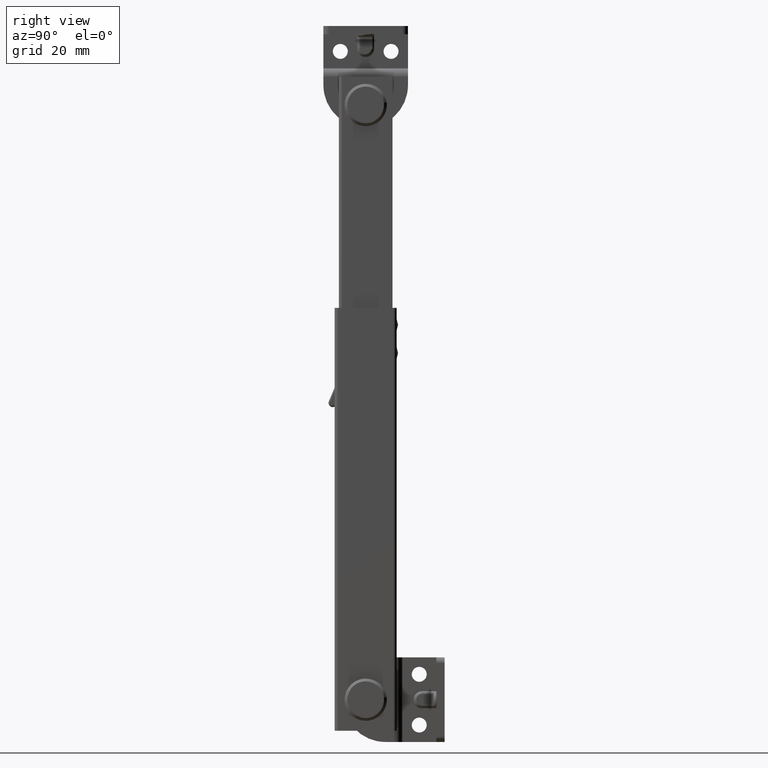
[diagram: clean part render]
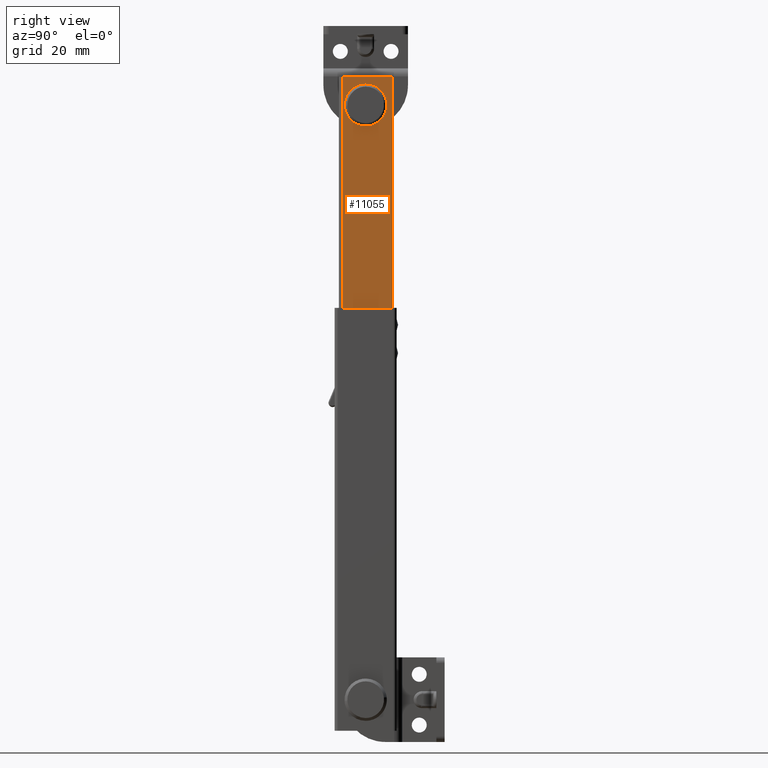
[diagram: same view with one face highlighted and labeled with its STEP entity id]
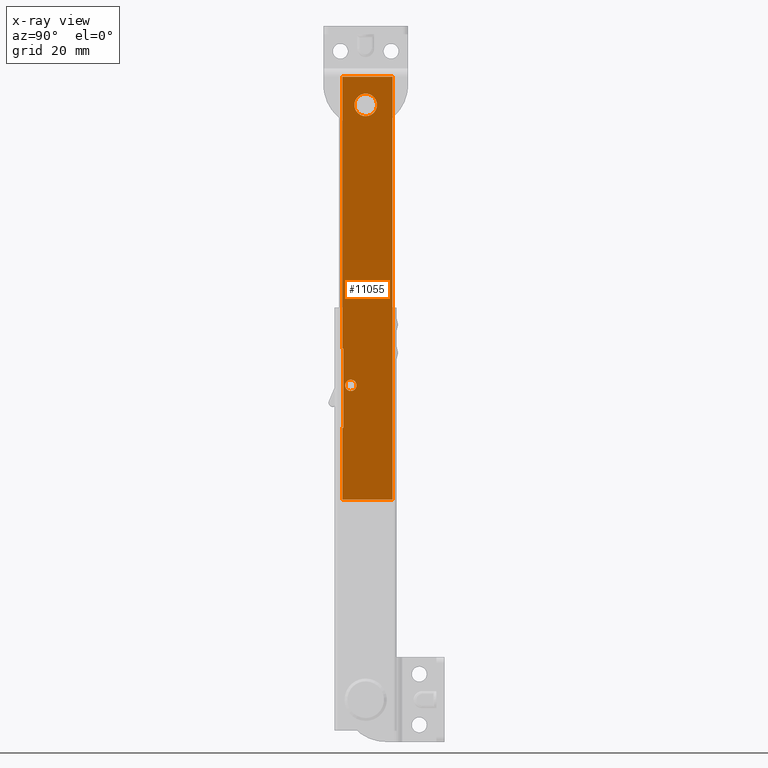
[diagram: x-ray of the same camera — body ghosted, the highlighted face saturated]
A machine part, right view. The second image highlights one B-rep face of the part: STEP entity #11055.
The next image is the same camera in x-ray: the body ghosted, the highlighted face saturated — about 0% of this face is hidden behind the body in this view.
In plain terms, the highlighted face is a freeform B-spline surface patch.
Its self-contained STEP definition (entity closure, byte-faithful):
#9904=CARTESIAN_POINT('',(-1.499999999999946,3.987669334732066,210.686163614541900));
#9905=VERTEX_POINT('',#9904);
#9911=CARTESIAN_POINT('',(-1.499999999999946,-1.421085E-014,215.0));
#9912=VERTEX_POINT('',#9911);
#9913=CARTESIAN_POINT('',(-1.499999999999946,3.987669334732067,210.686163614541870));
#9914=CARTESIAN_POINT('',(-1.499999999999946,3.999999999999987,210.842839569410760));
#9915=CARTESIAN_POINT('',(-1.499999999999946,3.999999999999986,211.0));
#9916=CARTESIAN_POINT('',(-1.499999999999946,3.999999999999987,214.999999999999940));
#9917=CARTESIAN_POINT('',(-1.499999999999946,-1.421085E-014,215.0));
#9925=(BOUNDED_CURVE()B_SPLINE_CURVE(2,(#9913,#9914,#9915,#9916,#9917),.UNSPECIFIED.,.F.,.U.)B_SPLINE_CURVE_WITH_KNOTS((3,2,3),(0.736331300413807,0.750000000000000,1.0),.UNSPECIFIED.)CURVE()GEOMETRIC_REPRESENTATION_ITEM()RATIONAL_B_SPLINE_CURVE((0.969723355714863,0.983986122324824,1.0,0.707106781186548,1.0))REPRESENTATION_ITEM(''));
#9926=EDGE_CURVE('',#9905,#9912,#9925,.T.);
#9928=CARTESIAN_POINT('',(-1.499999999999946,-3.987669334732095,211.313836385458100));
#9929=VERTEX_POINT('',#9928);
#9930=CARTESIAN_POINT('',(-1.499999999999946,-1.421085E-014,215.0));
#9931=CARTESIAN_POINT('',(-1.499999999999946,-3.697561961895362,214.999999999999910));
#9932=CARTESIAN_POINT('',(-1.499999999999946,-3.987669334732094,211.313836385458160));
#9940=(BOUNDED_CURVE()B_SPLINE_CURVE(2,(#9930,#9931,#9932),.UNSPECIFIED.,.F.,.U.)B_SPLINE_CURVE_WITH_KNOTS((3,3),(0.0,0.236331300413807),.UNSPECIFIED.)CURVE()GEOMETRIC_REPRESENTATION_ITEM()RATIONAL_B_SPLINE_CURVE((1.0,0.723120658861724,0.969723355714863))REPRESENTATION_ITEM(''));
#9941=EDGE_CURVE('',#9912,#9929,#9940,.T.);
#9987=CARTESIAN_POINT('',(-1.499999999999946,-1.421085E-014,207.0));
#9988=VERTEX_POINT('',#9987);
#9989=CARTESIAN_POINT('',(-1.499999999999946,-3.987669334732094,211.313836385458160));
#9990=CARTESIAN_POINT('',(-1.499999999999946,-4.000000000000013,211.157160430589270));
#9991=CARTESIAN_POINT('',(-1.499999999999946,-4.000000000000014,211.0));
#9992=CARTESIAN_POINT('',(-1.499999999999946,-4.000000000000015,207.000000000000090));
#9993=CARTESIAN_POINT('',(-1.499999999999946,-1.421085E-014,207.0));
#10001=(BOUNDED_CURVE()B_SPLINE_CURVE(2,(#9989,#9990,#9991,#9992,#9993),.UNSPECIFIED.,.F.,.U.)B_SPLINE_CURVE_WITH_KNOTS((3,2,3),(0.236331300413807,0.250000000000000,0.500000000000000),.UNSPECIFIED.)CURVE()GEOMETRIC_REPRESENTATION_ITEM()RATIONAL_B_SPLINE_CURVE((0.969723355714863,0.983986122324824,1.0,0.707106781186548,1.0))REPRESENTATION_ITEM(''));
#10002=EDGE_CURVE('',#9929,#9988,#10001,.T.);
#10004=CARTESIAN_POINT('',(-1.499999999999946,-1.421085E-014,207.0));
#10005=CARTESIAN_POINT('',(-1.499999999999946,3.697561961895347,207.0));
#10006=CARTESIAN_POINT('',(-1.499999999999946,3.987669334732066,210.686163614541900));
#10014=(BOUNDED_CURVE()B_SPLINE_CURVE(2,(#10004,#10005,#10006),.UNSPECIFIED.,.F.,.U.)B_SPLINE_CURVE_WITH_KNOTS((3,3),(0.500000000000000,0.736331300413808),.UNSPECIFIED.)CURVE()GEOMETRIC_REPRESENTATION_ITEM()RATIONAL_B_SPLINE_CURVE((1.0,0.723120658861723,0.969723355714865))REPRESENTATION_ITEM(''));
#10015=EDGE_CURVE('',#9988,#9905,#10014,.T.);
#10255=CARTESIAN_POINT('',(-1.500000000000055,-7.258319671515357,111.251743990503000));
#10256=VERTEX_POINT('',#10255);
#10262=CARTESIAN_POINT('',(-1.500000000000055,-5.273787244531961,109.500000000000000));
#10263=VERTEX_POINT('',#10262);
#10264=CARTESIAN_POINT('',(-1.500000000000055,-7.258319671515357,111.251743990503020));
#10265=CARTESIAN_POINT('',(-1.500000000000055,-7.039184435262392,109.499999999999970));
#10266=CARTESIAN_POINT('',(-1.500000000000055,-5.273787244531961,109.500000000000000));
#10274=(BOUNDED_CURVE()B_SPLINE_CURVE(2,(#10264,#10265,#10266),.UNSPECIFIED.,.F.,.U.)B_SPLINE_CURVE_WITH_KNOTS((3,3),(0.271473929877842,0.500000000000000),.UNSPECIFIED.)CURVE()GEOMETRIC_REPRESENTATION_ITEM()RATIONAL_B_SPLINE_CURVE((0.954005428514309,0.732265054956530,1.0))REPRESENTATION_ITEM(''));
#10275=EDGE_CURVE('',#10256,#10263,#10274,.T.);
#10277=CARTESIAN_POINT('',(-1.500000000000055,-3.273863398429096,111.517453073916200));
#10278=VERTEX_POINT('',#10277);
#10279=CARTESIAN_POINT('',(-1.500000000000055,-5.273787244531961,109.500000000000000));
#10280=CARTESIAN_POINT('',(-1.500000000000055,-3.273787244531960,109.499999999999990));
#10281=CARTESIAN_POINT('',(-1.500000000000055,-3.273787244531960,111.500000000000000));
#10282=CARTESIAN_POINT('',(-1.500000000000055,-3.273787244531960,111.508726704561000));
#10283=CARTESIAN_POINT('',(-1.500000000000055,-3.273863398429095,111.517453073916170));
#10291=(BOUNDED_CURVE()B_SPLINE_CURVE(2,(#10279,#10280,#10281,#10282,#10283),.UNSPECIFIED.,.F.,.U.)B_SPLINE_CURVE_WITH_KNOTS((3,2,3),(0.500000000000000,0.750000000000000,0.751539894849246),.UNSPECIFIED.)CURVE()GEOMETRIC_REPRESENTATION_ITEM()RATIONAL_B_SPLINE_CURVE((1.0,0.707106781186548,1.0,0.998195900963880,0.996414026910266))REPRESENTATION_ITEM(''));
#10292=EDGE_CURVE('',#10263,#10278,#10291,.T.);
#10372=CARTESIAN_POINT('',(-1.500000000000055,-5.273787244531961,113.500000000000000));
#10373=VERTEX_POINT('',#10372);
#10374=CARTESIAN_POINT('',(-1.500000000000055,-3.273863398429096,111.517453073916160));
#10375=CARTESIAN_POINT('',(-1.500000000000055,-3.291164829130615,113.500000000000000));
#10376=CARTESIAN_POINT('',(-1.500000000000055,-5.273787244531961,113.500000000000000));
#10384=(BOUNDED_CURVE()B_SPLINE_CURVE(2,(#10374,#10375,#10376),.UNSPECIFIED.,.F.,.U.)B_SPLINE_CURVE_WITH_KNOTS((3,3),(0.751539894849247,1.0),.UNSPECIFIED.)CURVE()GEOMETRIC_REPRESENTATION_ITEM()RATIONAL_B_SPLINE_CURVE((0.996414026910264,0.708910880222669,1.0))REPRESENTATION_ITEM(''));
#10385=EDGE_CURVE('',#10278,#10373,#10384,.T.);
#10387=CARTESIAN_POINT('',(-1.500000000000055,-5.273787244531961,113.500000000000000));
#10388=CARTESIAN_POINT('',(-1.500000000000055,-7.273787244531961,113.500000000000000));
#10389=CARTESIAN_POINT('',(-1.500000000000055,-7.273787244531961,111.500000000000000));
#10390=CARTESIAN_POINT('',(-1.500000000000055,-7.273787244531961,111.375390139533170));
#10391=CARTESIAN_POINT('',(-1.500000000000055,-7.258319671515357,111.251743990503030));
#10399=(BOUNDED_CURVE()B_SPLINE_CURVE(2,(#10387,#10388,#10389,#10390,#10391),.UNSPECIFIED.,.F.,.U.)B_SPLINE_CURVE_WITH_KNOTS((3,2,3),(0.0,0.250000000000000,0.271473929877842),.UNSPECIFIED.)CURVE()GEOMETRIC_REPRESENTATION_ITEM()RATIONAL_B_SPLINE_CURVE((1.0,0.707106781186548,1.0,0.974841726230018,0.954005428514309))REPRESENTATION_ITEM(''));
#10400=EDGE_CURVE('',#10373,#10256,#10399,.T.);
#10444=CARTESIAN_POINT('',(-1.500000000000035,-8.300000000000001,96.500000000000000));
#10445=VERTEX_POINT('',#10444);
#10459=CARTESIAN_POINT('',(-1.499999999999946,-7.900000000000000,96.500000000000000));
#10460=VERTEX_POINT('',#10459);
#10461=CARTESIAN_POINT('',(-1.499999999999946,-7.900000000000000,96.500000000000000));
#10462=CARTESIAN_POINT('',(-1.500000000000035,-8.300000000000001,96.500000000000000));
#10463=QUASI_UNIFORM_CURVE('',1,(#10461,#10462),.UNSPECIFIED.,.F.,.U.);
#10464=EDGE_CURVE('',#10460,#10445,#10463,.T.);
#10516=CARTESIAN_POINT('',(-1.499999999999946,-7.900000000000000,124.500000000000000));
#10517=VERTEX_POINT('',#10516);
#10523=CARTESIAN_POINT('',(-1.500000000000035,-8.300000000000001,124.500000000000000));
#10524=VERTEX_POINT('',#10523);
#10525=CARTESIAN_POINT('',(-1.500000000000035,-8.300000000000001,124.500000000000000));
#10526=CARTESIAN_POINT('',(-1.499999999999946,-7.900000000000000,124.500000000000000));
#10527=QUASI_UNIFORM_CURVE('',1,(#10525,#10526),.UNSPECIFIED.,.F.,.U.);
#10528=EDGE_CURVE('',#10524,#10517,#10527,.T.);
#10582=CARTESIAN_POINT('',(-1.499999999999946,-7.900000000000000,124.500000000000000));
#10583=CARTESIAN_POINT('',(-1.499999999999946,-7.900000000000000,96.500000000000000));
#10584=QUASI_UNIFORM_CURVE('',1,(#10582,#10583),.UNSPECIFIED.,.F.,.U.);
#10585=EDGE_CURVE('',#10517,#10460,#10584,.T.);
#10632=CARTESIAN_POINT('',(-1.500000000000000,-8.300000000000001,71.0));
#10633=VERTEX_POINT('',#10632);
#10647=CARTESIAN_POINT('',(-1.500000000000035,-8.300000000000001,96.500000000000000));
#10648=CARTESIAN_POINT('',(-1.500000000000000,-8.300000000000001,71.0));
#10649=QUASI_UNIFORM_CURVE('',1,(#10647,#10648),.UNSPECIFIED.,.F.,.U.);
#10650=EDGE_CURVE('',#10445,#10633,#10649,.T.);
#10780=CARTESIAN_POINT('',(-1.499999999999946,9.500000000000000,71.0));
#10781=VERTEX_POINT('',#10780);
#10787=CARTESIAN_POINT('',(-1.499999999999946,9.500000000000000,71.0));
#10788=CARTESIAN_POINT('',(-1.500000000000000,-8.300000000000001,71.0));
#10789=QUASI_UNIFORM_CURVE('',1,(#10787,#10788),.UNSPECIFIED.,.F.,.U.);
#10790=EDGE_CURVE('',#10781,#10633,#10789,.T.);
#10809=CARTESIAN_POINT('',(-1.499999999999946,9.500000000000000,221.0));
#10810=VERTEX_POINT('',#10809);
#10816=CARTESIAN_POINT('',(-1.499999999999946,9.500000000000000,221.0));
#10817=CARTESIAN_POINT('',(-1.499999999999946,9.500000000000000,71.0));
#10818=QUASI_UNIFORM_CURVE('',1,(#10816,#10817),.UNSPECIFIED.,.F.,.U.);
#10819=EDGE_CURVE('',#10810,#10781,#10818,.T.);
#10888=CARTESIAN_POINT('',(-1.500000000000000,-8.300000000000001,221.0));
#10889=VERTEX_POINT('',#10888);
#10903=CARTESIAN_POINT('',(-1.500000000000000,-8.300000000000001,221.0));
#10904=CARTESIAN_POINT('',(-1.499999999999946,9.500000000000000,221.0));
#10905=QUASI_UNIFORM_CURVE('',1,(#10903,#10904),.UNSPECIFIED.,.F.,.U.);
#10906=EDGE_CURVE('',#10889,#10810,#10905,.T.);
#11024=CARTESIAN_POINT('',(-1.500000000000000,-9.189110299687474,228.492499709270900));
#11025=CARTESIAN_POINT('',(-1.500000000000000,10.389110458831871,228.492499709270900));
#11026=CARTESIAN_POINT('',(-1.500000000000000,-9.189110299687474,63.507496267415569));
#11027=CARTESIAN_POINT('',(-1.500000000000000,10.389110458831871,63.507496267415569));
#11028=B_SPLINE_SURFACE_WITH_KNOTS('',1,1,((#11024,#11026),(#11025,#11027)),.UNSPECIFIED.,.F.,.F.,.U.,(2,2),(2,2),(0.0,19.578220758519350),(0.0,164.985003441855300),.UNSPECIFIED.);
#11029=CARTESIAN_POINT('',(-1.500000000000000,-8.300000000000001,221.0));
#11030=CARTESIAN_POINT('',(-1.500000000000035,-8.300000000000001,124.500000000000000));
#11031=QUASI_UNIFORM_CURVE('',1,(#11029,#11030),.UNSPECIFIED.,.F.,.U.);
#11032=EDGE_CURVE('',#10889,#10524,#11031,.T.);
#11033=ORIENTED_EDGE('',*,*,#11032,.T.);
#11034=ORIENTED_EDGE('',*,*,#10528,.T.);
#11035=ORIENTED_EDGE('',*,*,#10585,.T.);
#11036=ORIENTED_EDGE('',*,*,#10464,.T.);
#11037=ORIENTED_EDGE('',*,*,#10650,.T.);
#11038=ORIENTED_EDGE('',*,*,#10790,.F.);
#11039=ORIENTED_EDGE('',*,*,#10819,.F.);
#11040=ORIENTED_EDGE('',*,*,#10906,.F.);
#11041=EDGE_LOOP('',(#11033,#11034,#11035,#11036,#11037,#11038,#11039,#11040));
#11042=FACE_OUTER_BOUND('',#11041,.T.);
#11043=ORIENTED_EDGE('',*,*,#10292,.F.);
#11044=ORIENTED_EDGE('',*,*,#10275,.F.);
#11045=ORIENTED_EDGE('',*,*,#10400,.F.);
#11046=ORIENTED_EDGE('',*,*,#10385,.F.);
#11047=EDGE_LOOP('',(#11043,#11044,#11045,#11046));
#11048=FACE_BOUND('',#11047,.T.);
#11049=ORIENTED_EDGE('',*,*,#10015,.F.);
#11050=ORIENTED_EDGE('',*,*,#10002,.F.);
#11051=ORIENTED_EDGE('',*,*,#9941,.F.);
#11052=ORIENTED_EDGE('',*,*,#9926,.F.);
#11053=EDGE_LOOP('',(#11049,#11050,#11051,#11052));
#11054=FACE_BOUND('',#11053,.T.);
#11055=ADVANCED_FACE('',(#11042,#11048,#11054),#11028,.F.);